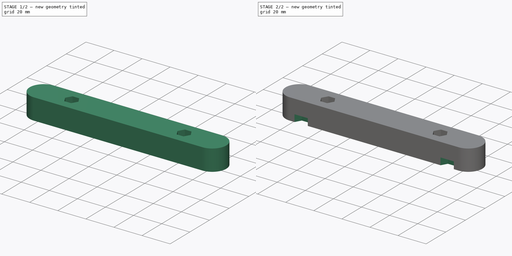
[diagram: build sequence overview — one tinted view per stage of 2, left to right]
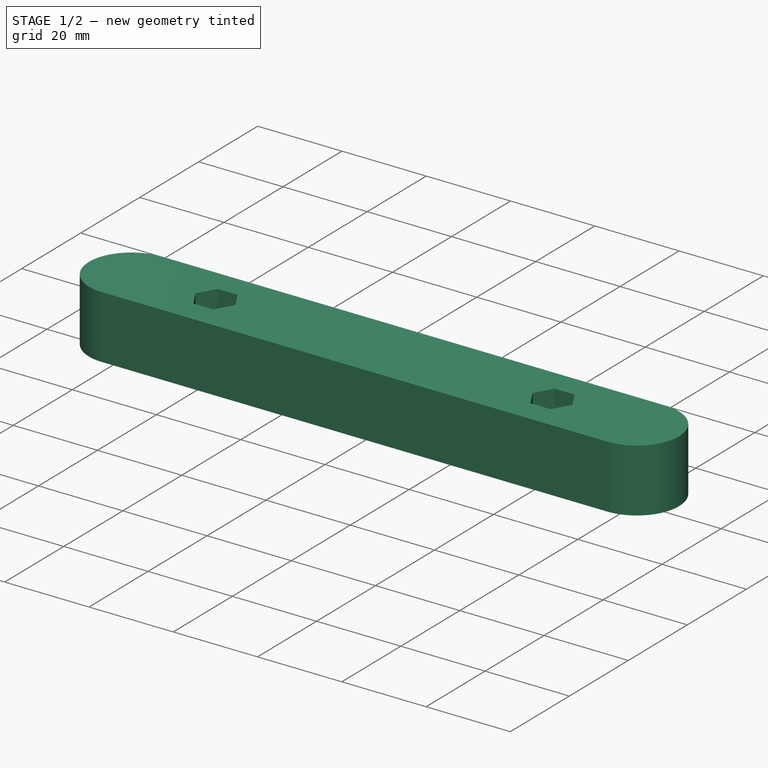
[diagram: stage 1 of 2 — iso view after this stage's code; geometry added in this stage tinted green]
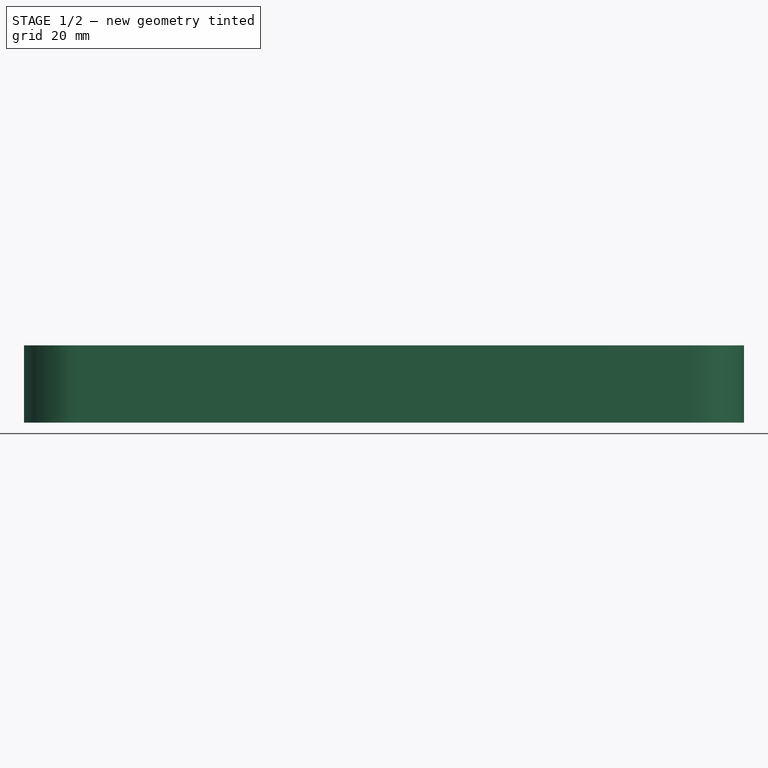
[diagram: stage 1 of 2 — front view after this stage's code; geometry added in this stage tinted green]
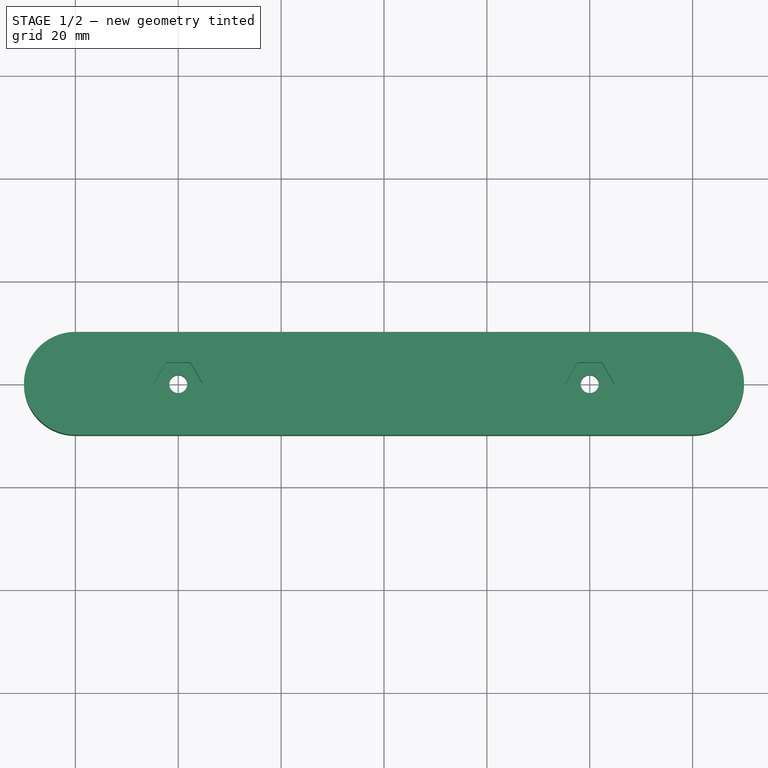
[diagram: stage 1 of 2 — top view after this stage's code; geometry added in this stage tinted green]
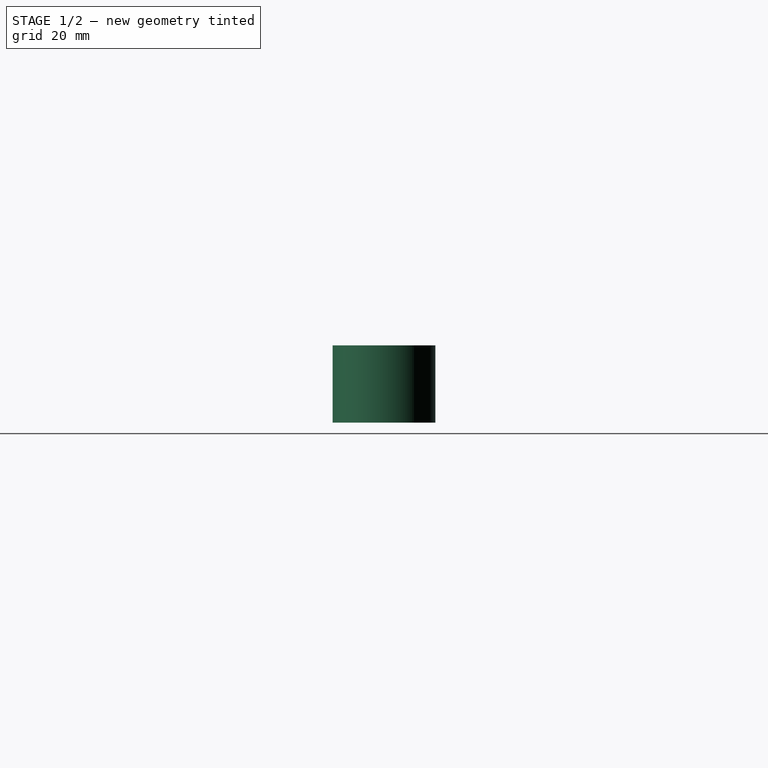
[diagram: stage 1 of 2 — right view after this stage's code; geometry added in this stage tinted green]
FCSTD DOCUMENT  (FreeCAD 0.14R3700 (Git))
Label: Landing Strut
License: CC-BY 3.0
LicenseURL: http://creativecommons.org/licenses/by/3.0/
objects: Sketcher::SketchObject×3, PartDesign::Pocket×2, PartDesign::Pad×1
note: 9 computed .brp shape members not serialized (recipe doc carries the construction recipe); baked Part::Feature solids carry a one-line shape summary decoded from their .brp

FEATURE [Sketcher::SketchObject] Sketch
  sketch-geometry (6):
    g0: ArcOfCircle CenterX=-60 CenterY=0 CenterZ=0 NormalX=0 NormalY=0 NormalZ=1 Radius=10 StartAngle=1.5708 EndAngle=4.71239
    g1: ArcOfCircle CenterX=60 CenterY=0 CenterZ=0 NormalX=0 NormalY=0 NormalZ=1 Radius=10 StartAngle=4.71239 EndAngle=7.85398
    g2: LineSegment StartX=-60 StartY=-10 StartZ=0 EndX=60 EndY=-10 EndZ=0
    g3: LineSegment StartX=-60 StartY=10 StartZ=0 EndX=60 EndY=10 EndZ=0
    g4: Circle CenterX=40 CenterY=0 CenterZ=0 NormalX=0 NormalY=0 NormalZ=1 Radius=1.75
    g5: Circle CenterX=-40 CenterY=0 CenterZ=0 NormalX=0 NormalY=0 NormalZ=1 Radius=1.75
  constraints (20):
    c: Tangent(g0,g2)
    c: Tangent(g0,g3)
    c: Tangent(g1,g2)
    c: Tangent(g1,g3)
    c: Coincident(g0,g3)
    c: Coincident(g0,g2)
    c: Coincident(g2,g1)
    c: Coincident(g3,g1)
    c: Horizontal(g2)
    c: Equal(g0,g1)
    c: DistanceX(g1,g0) = -120
    c: DistanceY(g0,g0) = 20
    c: DistanceY(g-1,g0) = 0
    c: DistanceX(g-1,g1) = 60
    c: Radius(g4) = 1.75
    c: DistanceX(g-1,g4) = 40
    c: DistanceY(g-1,g4) = 0
    c: Radius(g5) = 1.75
    c: DistanceX(g5,g4) = 80
    c: DistanceY(g-1,g5) = 0
FEATURE [PartDesign::Pad] Pad
  Length = 15
  Length2 = 20
  Sketch = -> Sketch
  Type = 0
FEATURE [Sketcher::SketchObject] Sketch001
  ExternalGeometry = -> [Pad]
  Placement = pos=(0,0,15) rot=(0,0,1;0rad)
  Support = -> Pad [Face8]
  sketch-geometry (14):
    g0: Circle [constr] CenterX=-40 CenterY=0 CenterZ=0 NormalX=0 NormalY=0 NormalZ=1 Radius=4.1
    g1: Circle [constr] CenterX=40 CenterY=0 CenterZ=0 NormalX=0 NormalY=0 NormalZ=1 Radius=4.1
    g2: LineSegment StartX=-42.3671 StartY=4.1 StartZ=0 EndX=-37.6329 EndY=4.1 EndZ=0
    g3: LineSegment StartX=-37.6329 StartY=4.1 StartZ=0 EndX=-35.2657 EndY=2e-12 EndZ=0
    g4: LineSegment StartX=-35.2657 StartY=2e-12 StartZ=0 EndX=-37.6329 EndY=-4.1 EndZ=0
    g5: LineSegment StartX=-37.6329 StartY=-4.1 StartZ=0 EndX=-42.3671 EndY=-4.1 EndZ=0
    g6: LineSegment StartX=-42.3671 StartY=-4.1 StartZ=0 EndX=-44.7343 EndY=-2e-12 EndZ=0
    g7: LineSegment StartX=-44.7343 StartY=-2e-12 StartZ=0 EndX=-42.3671 EndY=4.1 EndZ=0
    g8: LineSegment StartX=37.6329 StartY=4.1 StartZ=0 EndX=42.3671 EndY=4.1 EndZ=0
    g9: LineSegment StartX=42.3671 StartY=4.1 StartZ=0 EndX=44.7343 EndY=-2e-12 EndZ=0
    g10: LineSegment StartX=44.7343 StartY=-2e-12 StartZ=0 EndX=42.3671 EndY=-4.1 EndZ=0
    g11: LineSegment StartX=42.3671 StartY=-4.1 StartZ=0 EndX=37.6329 EndY=-4.1 EndZ=0
    g12: LineSegment StartX=37.6329 StartY=-4.1 StartZ=0 EndX=35.2657 EndY=0 EndZ=0
    g13: LineSegment StartX=35.2657 StartY=0 StartZ=0 EndX=37.6329 EndY=4.1 EndZ=0
  constraints (42):
    c: Radius(g0) = 4.1
    c: Radius(g1) = 4.1
    c: Coincident(g2,g3)
    c: Coincident(g3,g4)
    c: Coincident(g4,g5)
    c: Coincident(g5,g6)
    c: Coincident(g6,g7)
    c: Coincident(g7,g2)
    c: Horizontal(g2)
    c: Horizontal(g5)
    c: Tangent(g2,g0)
    c: Tangent(g3,g0)
    c: Tangent(g4,g0)
    c: Tangent(g0,g5)
    c: Tangent(g6,g0)
    c: Tangent(g7,g0)
    c: Equal(g2,g7)
    c: Equal(g7,g6)
    c: Equal(g6,g5)
    c: Equal(g5,g4)
    c: Equal(g4,g3)
    c: Coincident(g-3,g0)
    c: Coincident(g8,g9)
    c: Coincident(g9,g10)
    c: Coincident(g10,g11)
    c: Coincident(g11,g12)
    c: Coincident(g12,g13)
    c: Coincident(g13,g8)
    c: Horizontal(g8)
    c: Horizontal(g11)
    c: Tangent(g1,g8)
    c: Tangent(g13,g1)
    c: Tangent(g12,g1)
    c: Tangent(g11,g1)
    c: Tangent(g9,g1)
    c: Tangent(g10,g1)
    c: Equal(g12,g13)
    c: Equal(g13,g8)
    c: Equal(g8,g9)
    c: Equal(g9,g10)
    c: Equal(g10,g11)
    c: Coincident(g1,g-4)
FEATURE [PartDesign::Pocket] Pocket
  Length = 8
  Sketch = -> Sketch001
  Type = 0
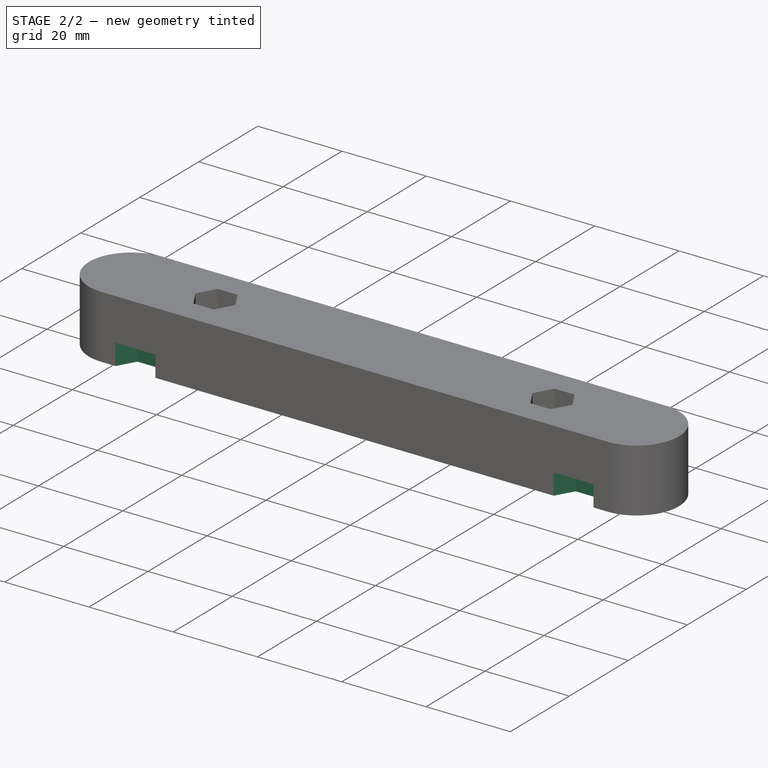
[diagram: stage 2 of 2 — iso view after this stage's code; geometry added in this stage tinted green]
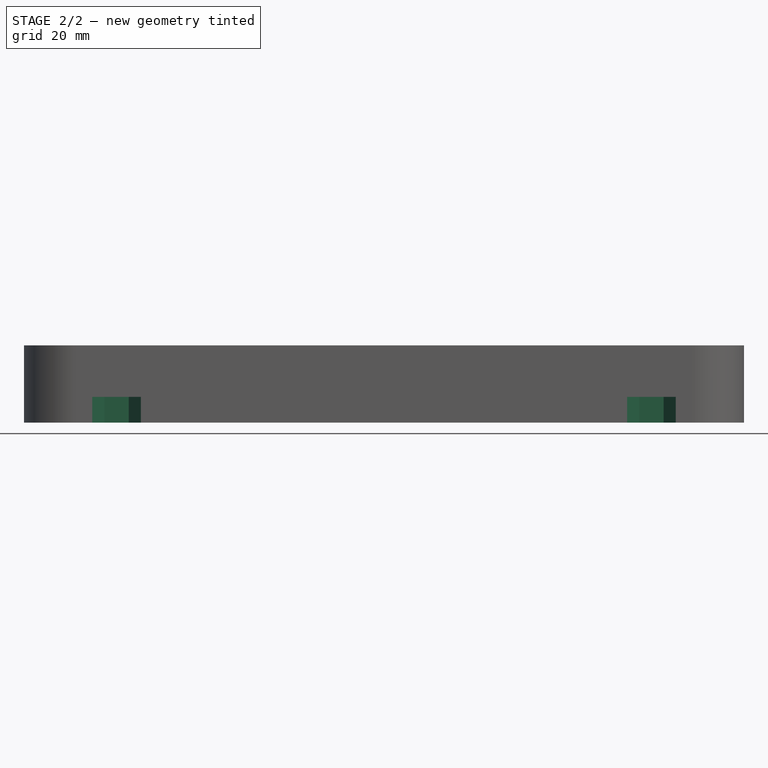
[diagram: stage 2 of 2 — front view after this stage's code; geometry added in this stage tinted green]
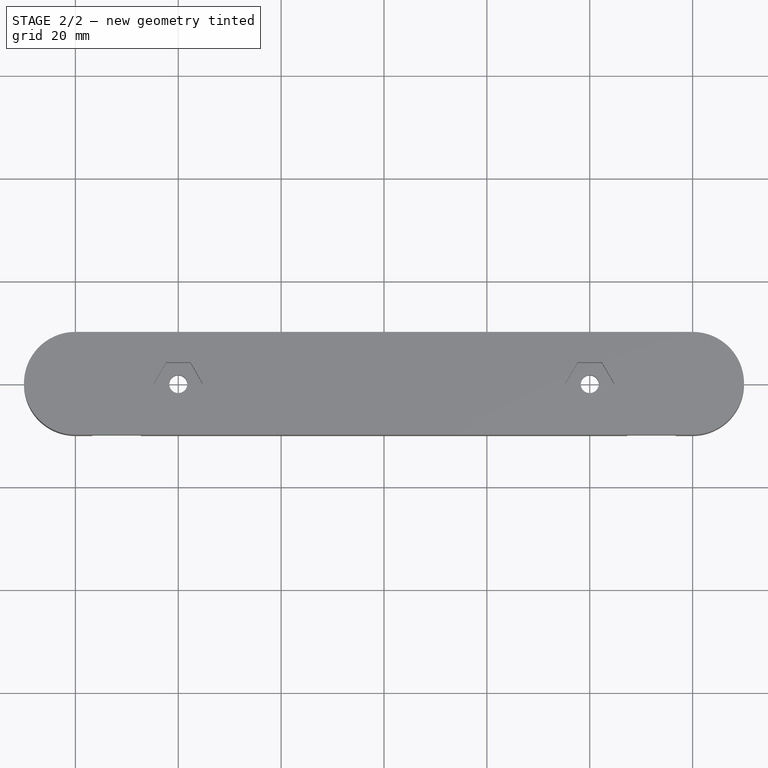
[diagram: stage 2 of 2 — top view after this stage's code; geometry added in this stage tinted green]
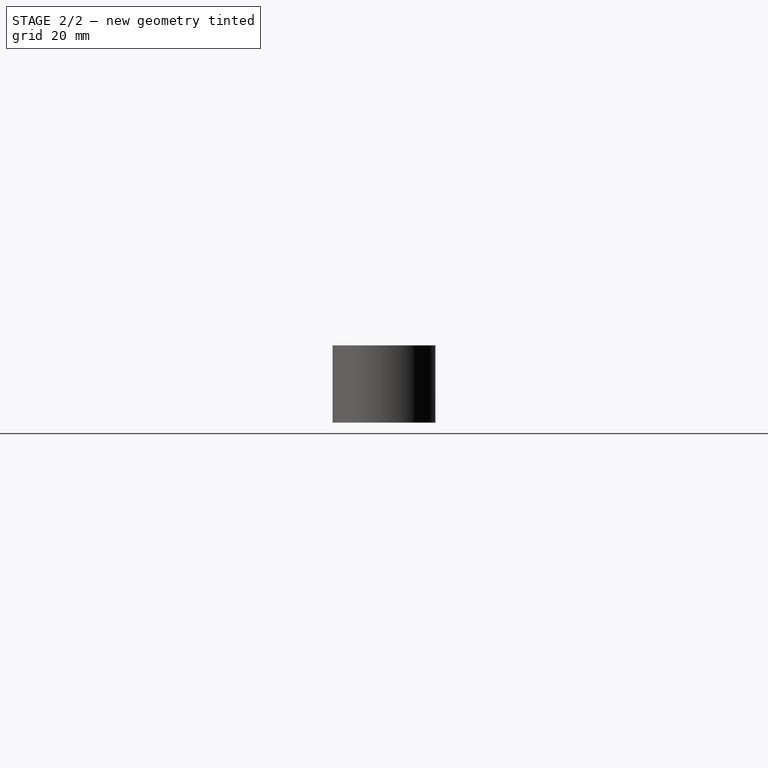
[diagram: stage 2 of 2 — right view after this stage's code; geometry added in this stage tinted green]
FEATURE [Sketcher::SketchObject] Sketch002
  Placement = pos=(0,0,0) rot=(1,0,0;3.14159rad)
  Support = -> Pocket [Face4]
  sketch-geometry (14):
    g0: Circle [constr] CenterX=-52 CenterY=10 CenterZ=0 NormalX=0 NormalY=0 NormalZ=1 Radius=4.1
    g1: LineSegment StartX=-54.3671 StartY=14.1 StartZ=0 EndX=-49.6329 EndY=14.1 EndZ=0
    g2: LineSegment StartX=-49.6329 StartY=14.1 StartZ=0 EndX=-47.2657 EndY=10 EndZ=0
    g3: LineSegment StartX=-47.2657 StartY=10 StartZ=0 EndX=-49.6329 EndY=5.9 EndZ=0
    g4: LineSegment StartX=-49.6329 StartY=5.9 StartZ=0 EndX=-54.3671 EndY=5.9 EndZ=0
    g5: LineSegment StartX=-54.3671 StartY=5.9 StartZ=0 EndX=-56.7343 EndY=10 EndZ=0
    g6: LineSegment StartX=-56.7343 StartY=10 StartZ=0 EndX=-54.3671 EndY=14.1 EndZ=0
    g7: Circle [constr] CenterX=52 CenterY=10 CenterZ=0 NormalX=0 NormalY=0 NormalZ=1 Radius=4.1
    g8: LineSegment StartX=49.6329 StartY=14.1 StartZ=0 EndX=54.3671 EndY=14.1 EndZ=0
    g9: LineSegment StartX=54.3671 StartY=14.1 StartZ=0 EndX=56.7343 EndY=10 EndZ=0
    g10: LineSegment StartX=56.7343 StartY=10 StartZ=0 EndX=54.3671 EndY=5.9 EndZ=0
    g11: LineSegment StartX=54.3671 StartY=5.9 StartZ=0 EndX=49.6329 EndY=5.9 EndZ=0
    g12: LineSegment StartX=49.6329 StartY=5.9 StartZ=0 EndX=47.2657 EndY=10 EndZ=0
    g13: LineSegment StartX=47.2657 StartY=10 StartZ=0 EndX=49.6329 EndY=14.1 EndZ=0
  constraints (44):
    c: Radius(g0) = 4.1
    c: Coincident(g1,g2)
    c: Coincident(g2,g3)
    c: Coincident(g3,g4)
    c: Coincident(g4,g5)
    c: Coincident(g5,g6)
    c: Coincident(g1,g6)
    c: Horizontal(g4)
    c: Horizontal(g1)
    c: Tangent(g0,g4)
    c: Tangent(g0,g3)
    c: Tangent(g2,g0)
    c: Tangent(g1,g0)
    c: Tangent(g6,g0)
    c: Tangent(g5,g0)
    c: Equal(g1,g6)
    c: Equal(g2,g1)
    c: Equal(g3,g2)
    c: Equal(g4,g3)
    c: Equal(g4,g5)
    c: DistanceX(g-1,g0) = -52
    c: DistanceY(g-1,g0) = 10
    c: Coincident(g8,g9)
    c: Coincident(g9,g10)
    c: Coincident(g10,g11)
    c: Coincident(g11,g12)
    c: Coincident(g12,g13)
    c: Coincident(g13,g8)
    c: Horizontal(g11)
    c: Horizontal(g8)
    c: Tangent(g11,g7)
    c: Tangent(g8,g7)
    c: Tangent(g9,g7)
    c: Tangent(g7,g10)
    c: Tangent(g7,g12)
    c: Tangent(g13,g7)
    c: Equal(g8,g13)
    c: Equal(g13,g12)
    c: Equal(g12,g11)
    c: Equal(g10,g11)
    c: Equal(g9,g10)
    c: Radius(g7) = 4.1
    c: DistanceX(g-1,g7) = 52
    c: DistanceY(g-1,g7) = 10
FEATURE [PartDesign::Pocket] Pocket001
  Length = 5
  Sketch = -> Sketch002
  Type = 0
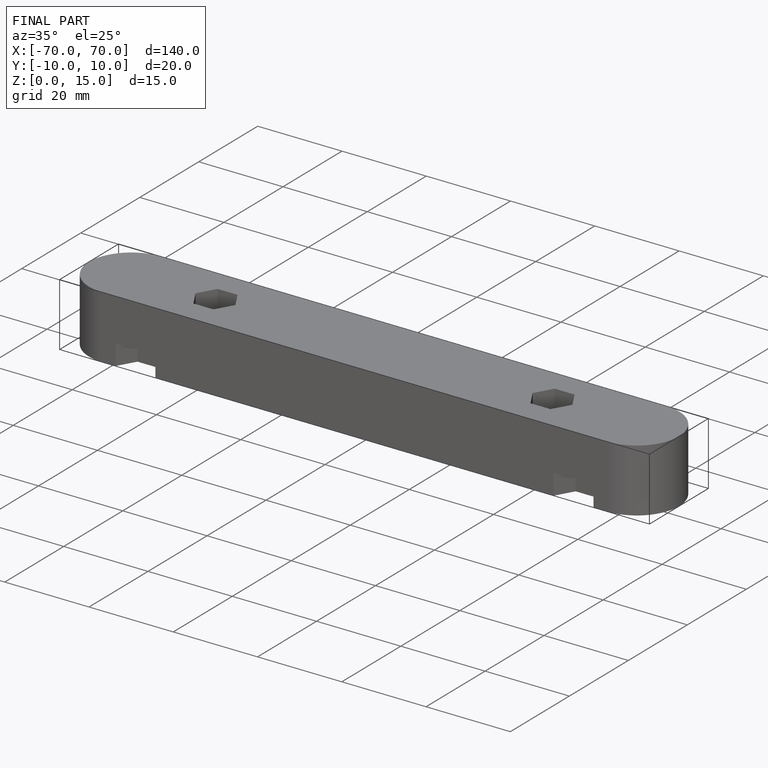
[diagram: finished part — iso view with bounding-box wireframe]
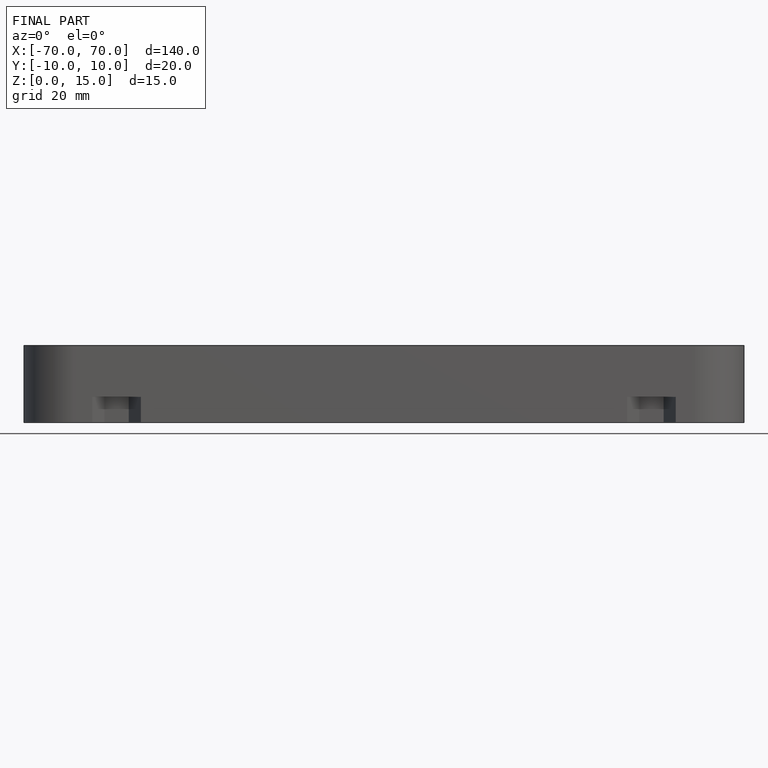
[diagram: finished part — front view with bounding-box wireframe]
